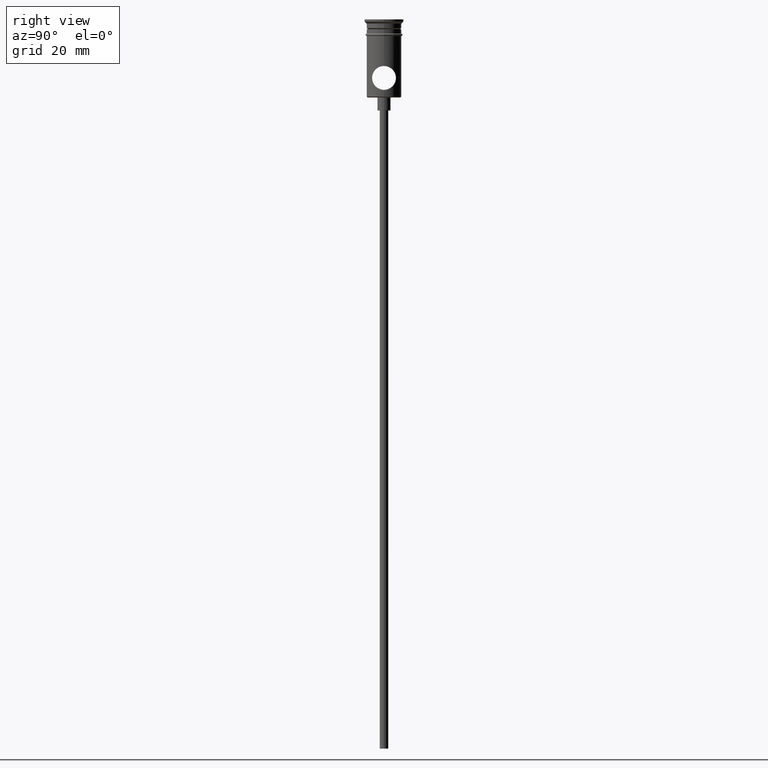
[diagram: clean part render]
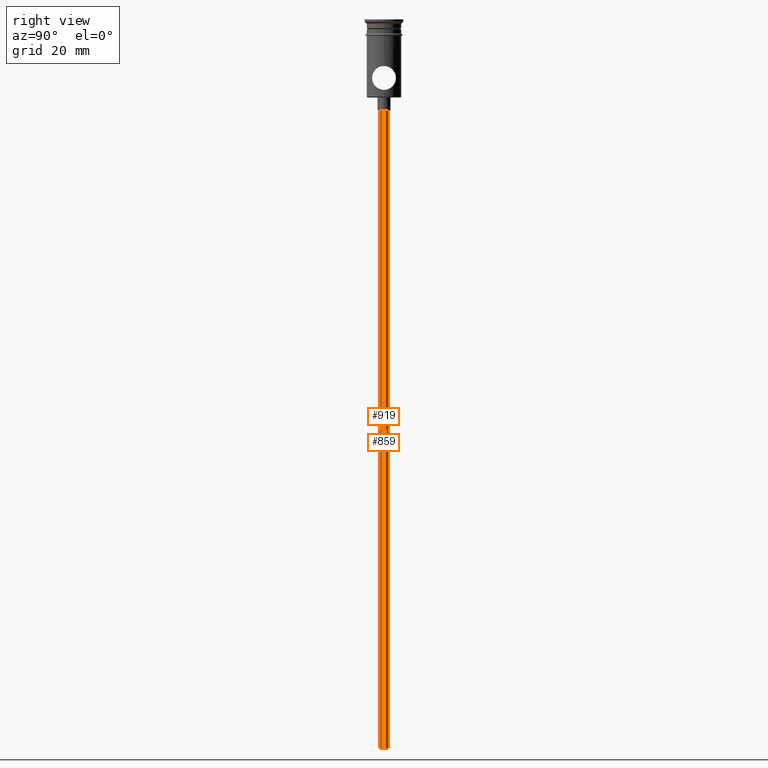
[diagram: same view with one multi-face feature highlighted, each face labeled with its STEP entity id]
A machine part, right view. The highlighted faces form ONE feature: a constant-radius fillet chain: 2 tangent blend faces with common blend radius 1 mm. The faces share edges in the B-rep.
Their STEP definitions:
[1] entity #859 (Cylinder):
#7 = CYLINDRICAL_SURFACE ( 'NONE', #1026, 0.9999999999999997780 ) ;
#14 = AXIS2_PLACEMENT_3D ( 'NONE', #730, #832, #593 ) ;
#50 = ORIENTED_EDGE ( 'NONE', *, *, #257, .F. ) ;
#90 = ORIENTED_EDGE ( 'NONE', *, *, #374, .T. ) ;
#161 = DIRECTION ( 'NONE',  ( 0.000000000000000000, 0.000000000000000000, -1.000000000000000000 ) ) ;
#257 = EDGE_CURVE ( 'NONE', #564, #1097, #721, .T. ) ;
#357 = CARTESIAN_POINT ( 'NONE',  ( 0.000000000000000000, 0.000000000000000000, -167.9999999999999716 ) ) ;
#374 = EDGE_CURVE ( 'NONE', #1066, #983, #1229, .T. ) ;
#375 = VECTOR ( 'NONE', #694, 1000.000000000000000 ) ;
#384 = CARTESIAN_POINT ( 'NONE',  ( 0.9999999999999997780, 0.000000000000000000, -167.9999999999999716 ) ) ;
#438 = DIRECTION ( 'NONE',  ( 1.000000000000000000, 0.000000000000000000, 0.000000000000000000 ) ) ;
#449 = CARTESIAN_POINT ( 'NONE',  ( 0.9999999999999997780, 0.000000000000000000, -20.99999999999999645 ) ) ;
#451 = CARTESIAN_POINT ( 'NONE',  ( -0.9999999999999997780, 1.224646799147352961E-16, -167.9999999999999716 ) ) ;
#511 = VECTOR ( 'NONE', #1358, 1000.000000000000000 ) ;
#564 = VERTEX_POINT ( 'NONE', #846 ) ;
#593 = DIRECTION ( 'NONE',  ( -1.000000000000000000, 0.000000000000000000, 0.000000000000000000 ) ) ;
#656 = AXIS2_PLACEMENT_3D ( 'NONE', #357, #161, #908 ) ;
#679 = EDGE_CURVE ( 'NONE', #564, #1066, #799, .T. ) ;
#694 = DIRECTION ( 'NONE',  ( -0.000000000000000000, -0.000000000000000000, 1.000000000000000000 ) ) ;
#721 = CIRCLE ( 'NONE', #656, 0.9999999999999997780 ) ;
#730 = CARTESIAN_POINT ( 'NONE',  ( 0.000000000000000000, 0.000000000000000000, -20.99999999999999645 ) ) ;
#799 = LINE ( 'NONE', #451, #375 ) ;
#832 = DIRECTION ( 'NONE',  ( 0.000000000000000000, 0.000000000000000000, -1.000000000000000000 ) ) ;
#846 = CARTESIAN_POINT ( 'NONE',  ( -0.9999999999999997780, 1.224646799147352961E-16, -167.9999999999999716 ) ) ;
#859 = ADVANCED_FACE ( 'NONE', ( #969 ), #7, .T. ) ;
#908 = DIRECTION ( 'NONE',  ( -1.000000000000000000, 0.000000000000000000, 0.000000000000000000 ) ) ;
#921 = CARTESIAN_POINT ( 'NONE',  ( -0.9999999999999997780, 1.224646799147352961E-16, -20.99999999999999645 ) ) ;
#933 = LINE ( 'NONE', #1032, #511 ) ;
#969 = FACE_OUTER_BOUND ( 'NONE', #1267, .T. ) ;
#983 = VERTEX_POINT ( 'NONE', #449 ) ;
#1026 = AXIS2_PLACEMENT_3D ( 'NONE', #1296, #1060, #438 ) ;
#1032 = CARTESIAN_POINT ( 'NONE',  ( 0.9999999999999997780, 0.000000000000000000, -167.9999999999999716 ) ) ;
#1060 = DIRECTION ( 'NONE',  ( -0.000000000000000000, -0.000000000000000000, 1.000000000000000000 ) ) ;
#1066 = VERTEX_POINT ( 'NONE', #921 ) ;
#1085 = EDGE_CURVE ( 'NONE', #1097, #983, #933, .T. ) ;
#1097 = VERTEX_POINT ( 'NONE', #384 ) ;
#1141 = ORIENTED_EDGE ( 'NONE', *, *, #1085, .F. ) ;
#1225 = ORIENTED_EDGE ( 'NONE', *, *, #679, .T. ) ;
#1229 = CIRCLE ( 'NONE', #14, 0.9999999999999997780 ) ;
#1267 = EDGE_LOOP ( 'NONE', ( #50, #1225, #90, #1141 ) ) ;
#1296 = CARTESIAN_POINT ( 'NONE',  ( 0.000000000000000000, 0.000000000000000000, -167.9999999999999716 ) ) ;
#1358 = DIRECTION ( 'NONE',  ( -0.000000000000000000, -0.000000000000000000, 1.000000000000000000 ) ) ;
[2] entity #919 (Cylinder):
#11 = EDGE_LOOP ( 'NONE', ( #103, #589, #862, #1308 ) ) ;
#92 = DIRECTION ( 'NONE',  ( -1.000000000000000000, 0.000000000000000000, 0.000000000000000000 ) ) ;
#103 = ORIENTED_EDGE ( 'NONE', *, *, #679, .F. ) ;
#188 = FACE_OUTER_BOUND ( 'NONE', #11, .T. ) ;
#256 = CARTESIAN_POINT ( 'NONE',  ( 0.000000000000000000, 0.000000000000000000, -167.9999999999999716 ) ) ;
#375 = VECTOR ( 'NONE', #694, 1000.000000000000000 ) ;
#384 = CARTESIAN_POINT ( 'NONE',  ( 0.9999999999999997780, 0.000000000000000000, -167.9999999999999716 ) ) ;
#416 = AXIS2_PLACEMENT_3D ( 'NONE', #814, #874, #567 ) ;
#449 = CARTESIAN_POINT ( 'NONE',  ( 0.9999999999999997780, 0.000000000000000000, -20.99999999999999645 ) ) ;
#451 = CARTESIAN_POINT ( 'NONE',  ( -0.9999999999999997780, 1.224646799147352961E-16, -167.9999999999999716 ) ) ;
#511 = VECTOR ( 'NONE', #1358, 1000.000000000000000 ) ;
#564 = VERTEX_POINT ( 'NONE', #846 ) ;
#567 = DIRECTION ( 'NONE',  ( -1.000000000000000000, 0.000000000000000000, 0.000000000000000000 ) ) ;
#589 = ORIENTED_EDGE ( 'NONE', *, *, #1254, .F. ) ;
#679 = EDGE_CURVE ( 'NONE', #564, #1066, #799, .T. ) ;
#694 = DIRECTION ( 'NONE',  ( -0.000000000000000000, -0.000000000000000000, 1.000000000000000000 ) ) ;
#785 = CYLINDRICAL_SURFACE ( 'NONE', #1129, 0.9999999999999997780 ) ;
#799 = LINE ( 'NONE', #451, #375 ) ;
#814 = CARTESIAN_POINT ( 'NONE',  ( 0.000000000000000000, 0.000000000000000000, -20.99999999999999645 ) ) ;
#846 = CARTESIAN_POINT ( 'NONE',  ( -0.9999999999999997780, 1.224646799147352961E-16, -167.9999999999999716 ) ) ;
#862 = ORIENTED_EDGE ( 'NONE', *, *, #1085, .T. ) ;
#874 = DIRECTION ( 'NONE',  ( 0.000000000000000000, 0.000000000000000000, -1.000000000000000000 ) ) ;
#896 = DIRECTION ( 'NONE',  ( -0.000000000000000000, -0.000000000000000000, 1.000000000000000000 ) ) ;
#919 = ADVANCED_FACE ( 'NONE', ( #188 ), #785, .T. ) ;
#921 = CARTESIAN_POINT ( 'NONE',  ( -0.9999999999999997780, 1.224646799147352961E-16, -20.99999999999999645 ) ) ;
#933 = LINE ( 'NONE', #1032, #511 ) ;
#975 = DIRECTION ( 'NONE',  ( 0.000000000000000000, 0.000000000000000000, -1.000000000000000000 ) ) ;
#983 = VERTEX_POINT ( 'NONE', #449 ) ;
#1032 = CARTESIAN_POINT ( 'NONE',  ( 0.9999999999999997780, 0.000000000000000000, -167.9999999999999716 ) ) ;
#1064 = CARTESIAN_POINT ( 'NONE',  ( 0.000000000000000000, 0.000000000000000000, -167.9999999999999716 ) ) ;
#1066 = VERTEX_POINT ( 'NONE', #921 ) ;
#1085 = EDGE_CURVE ( 'NONE', #1097, #983, #933, .T. ) ;
#1097 = VERTEX_POINT ( 'NONE', #384 ) ;
#1129 = AXIS2_PLACEMENT_3D ( 'NONE', #256, #896, #1328 ) ;
#1178 = CIRCLE ( 'NONE', #1243, 0.9999999999999997780 ) ;
#1202 = CIRCLE ( 'NONE', #416, 0.9999999999999997780 ) ;
#1243 = AXIS2_PLACEMENT_3D ( 'NONE', #1064, #975, #92 ) ;
#1254 = EDGE_CURVE ( 'NONE', #1097, #564, #1178, .T. ) ;
#1308 = ORIENTED_EDGE ( 'NONE', *, *, #1374, .T. ) ;
#1328 = DIRECTION ( 'NONE',  ( 1.000000000000000000, 0.000000000000000000, 0.000000000000000000 ) ) ;
#1358 = DIRECTION ( 'NONE',  ( -0.000000000000000000, -0.000000000000000000, 1.000000000000000000 ) ) ;
#1374 = EDGE_CURVE ( 'NONE', #983, #1066, #1202, .T. ) ;